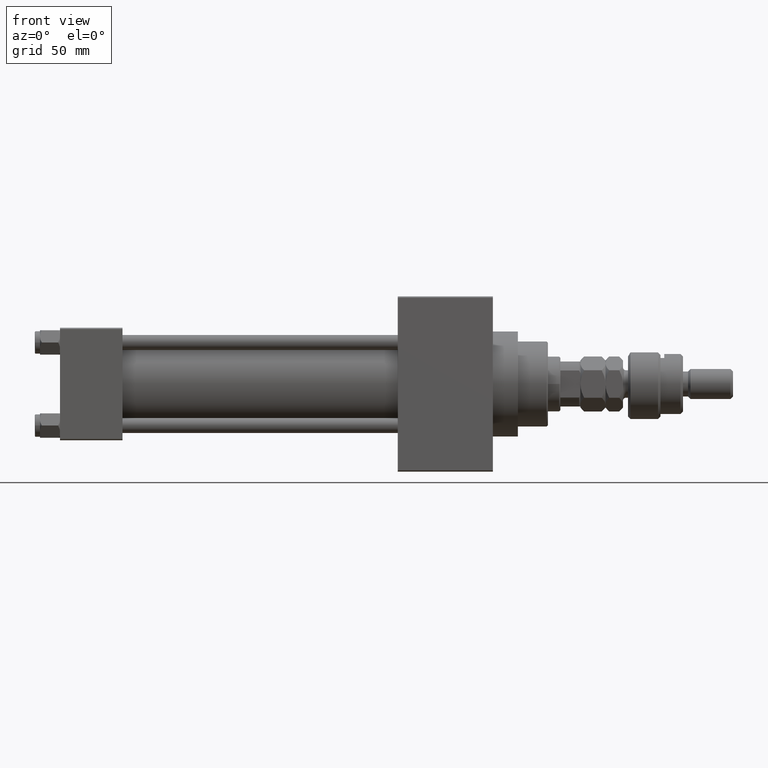
[diagram: clean part render]
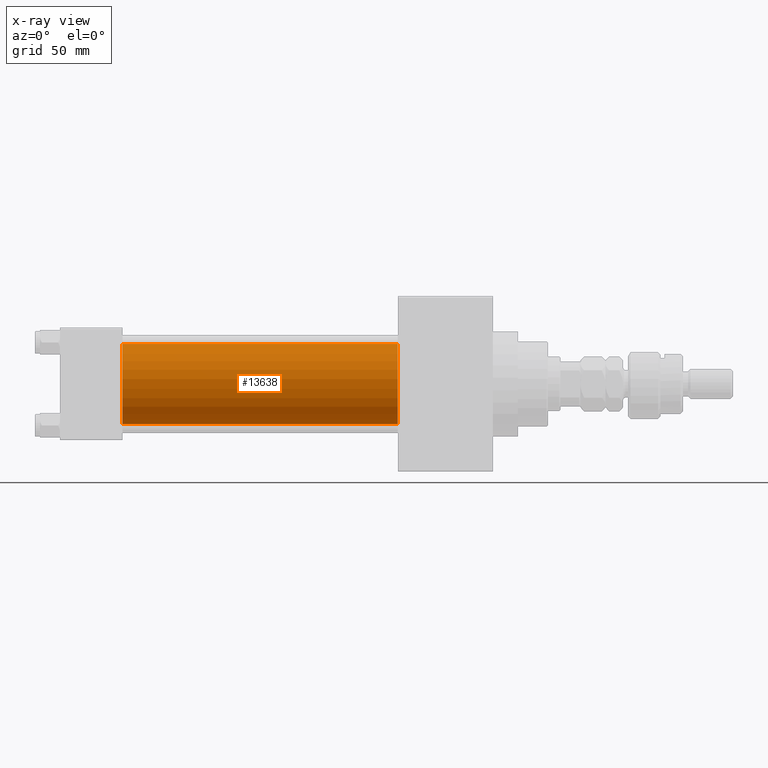
[diagram: x-ray — body ghosted, one internal face saturated and labeled with its STEP entity id]
A machine part, front view, then the same camera in x-ray: the body is ghosted and one INTERNAL B-rep face — a face not visible from any outside direction — is saturated and labeled: STEP entity #13638.
In plain terms, the highlighted cylindrical surface (partial cylindrical patch) has radius 16 mm, axis along (-1, -0, -0).
Its self-contained STEP definition (entity closure, byte-faithful):
#809 = DIRECTION ( 'NONE',  ( -1.000000000000000000, -0.000000000000000000, -0.000000000000000000 ) ) ;
#2014 = CARTESIAN_POINT ( 'NONE',  ( 25.00000000000000000, -2.602085213965210642E-15, 16.00000000000000000 ) ) ;
#3802 = VERTEX_POINT ( 'NONE', #46650 ) ;
#4620 = VECTOR ( 'NONE', #6512, 1000.000000000000000 ) ;
#4783 = ORIENTED_EDGE ( 'NONE', *, *, #36764, .T. ) ;
#6155 = VERTEX_POINT ( 'NONE', #2014 ) ;
#6491 = ORIENTED_EDGE ( 'NONE', *, *, #44705, .T. ) ;
#6512 = DIRECTION ( 'NONE',  ( -1.000000000000000000, -0.000000000000000000, -0.000000000000000000 ) ) ;
#9238 = CYLINDRICAL_SURFACE ( 'NONE', #37308, 16.00000000000000000 ) ;
#9259 = CARTESIAN_POINT ( 'NONE',  ( 25.00000000000000000, -6.426503353294456087E-16, -16.00000000000000000 ) ) ;
#10465 = LINE ( 'NONE', #42540, #4620 ) ;
#12055 = AXIS2_PLACEMENT_3D ( 'NONE', #49603, #16297, #21767 ) ;
#13638 = ADVANCED_FACE ( 'NONE', ( #44456 ), #9238, .F. ) ;
#14818 = CARTESIAN_POINT ( 'NONE',  ( 25.00000000000000000, -2.602085213965210642E-15, 0.000000000000000000 ) ) ;
#16297 = DIRECTION ( 'NONE',  ( 1.000000000000000000, 0.000000000000000000, 0.000000000000000000 ) ) ;
#17705 = ORIENTED_EDGE ( 'NONE', *, *, #25510, .F. ) ;
#21340 = VERTEX_POINT ( 'NONE', #43961 ) ;
#21619 = CARTESIAN_POINT ( 'NONE',  ( 135.0000000000000000, -2.602085213965210642E-15, 0.000000000000000000 ) ) ;
#21767 = DIRECTION ( 'NONE',  ( 0.000000000000000000, 0.000000000000000000, -1.000000000000000000 ) ) ;
#24060 = DIRECTION ( 'NONE',  ( -1.000000000000000000, -0.000000000000000000, -0.000000000000000000 ) ) ;
#25510 = EDGE_CURVE ( 'NONE', #3802, #6155, #10465, .T. ) ;
#26872 = EDGE_CURVE ( 'NONE', #6155, #37182, #38278, .T. ) ;
#28269 = LINE ( 'NONE', #48217, #50848 ) ;
#29242 = DIRECTION ( 'NONE',  ( 0.000000000000000000, 0.000000000000000000, 1.000000000000000000 ) ) ;
#30859 = DIRECTION ( 'NONE',  ( 1.000000000000000000, 0.000000000000000000, 0.000000000000000000 ) ) ;
#33257 = AXIS2_PLACEMENT_3D ( 'NONE', #14818, #30859, #43170 ) ;
#35791 = EDGE_LOOP ( 'NONE', ( #4783, #6491, #43178, #17705 ) ) ;
#36764 = EDGE_CURVE ( 'NONE', #3802, #21340, #43943, .T. ) ;
#37182 = VERTEX_POINT ( 'NONE', #9259 ) ;
#37308 = AXIS2_PLACEMENT_3D ( 'NONE', #21619, #809, #29242 ) ;
#38278 = CIRCLE ( 'NONE', #33257, 16.00000000000000000 ) ;
#42540 = CARTESIAN_POINT ( 'NONE',  ( 135.0000000000000000, -2.602085213965210642E-15, 16.00000000000000000 ) ) ;
#43170 = DIRECTION ( 'NONE',  ( 0.000000000000000000, 0.000000000000000000, -1.000000000000000000 ) ) ;
#43178 = ORIENTED_EDGE ( 'NONE', *, *, #26872, .F. ) ;
#43943 = CIRCLE ( 'NONE', #12055, 16.00000000000000000 ) ;
#43961 = CARTESIAN_POINT ( 'NONE',  ( 135.0000000000000000, -6.426503353294456087E-16, -16.00000000000000000 ) ) ;
#44456 = FACE_OUTER_BOUND ( 'NONE', #35791, .T. ) ;
#44705 = EDGE_CURVE ( 'NONE', #21340, #37182, #28269, .T. ) ;
#46650 = CARTESIAN_POINT ( 'NONE',  ( 135.0000000000000000, -2.602085213965210642E-15, 16.00000000000000000 ) ) ;
#48217 = CARTESIAN_POINT ( 'NONE',  ( 135.0000000000000000, -6.426503353294456087E-16, -16.00000000000000000 ) ) ;
#49603 = CARTESIAN_POINT ( 'NONE',  ( 135.0000000000000000, -2.602085213965210642E-15, 0.000000000000000000 ) ) ;
#50848 = VECTOR ( 'NONE', #24060, 1000.000000000000000 ) ;